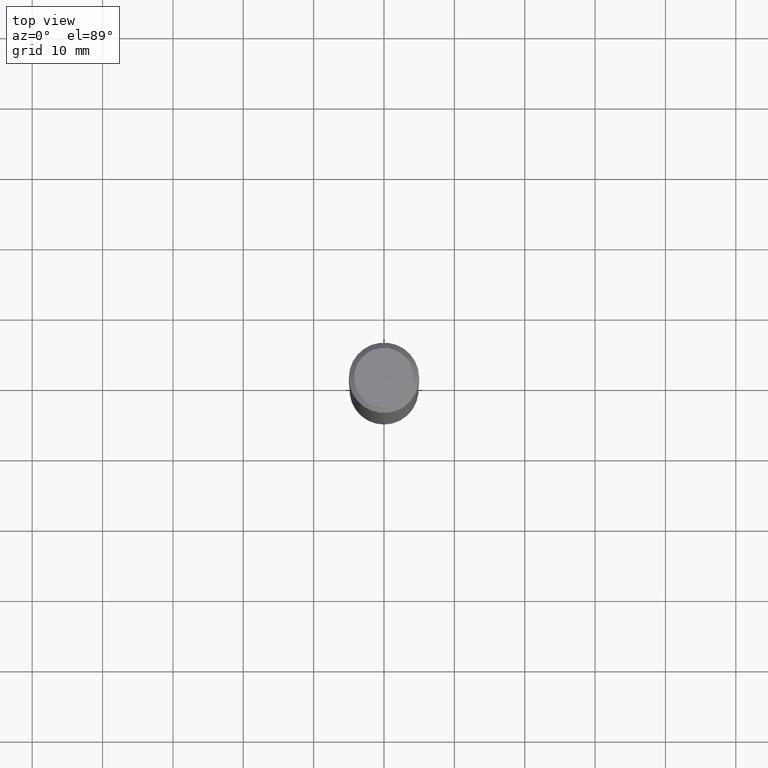
[diagram: clean part render]
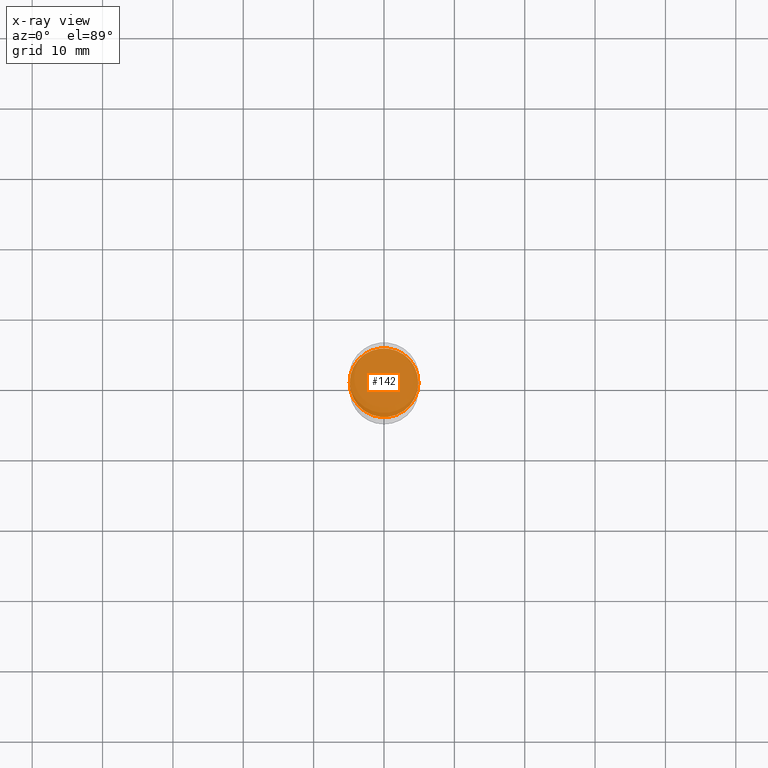
[diagram: x-ray — body ghosted, one internal face saturated and labeled with its STEP entity id]
A machine part, top view, then the same camera in x-ray: the body is ghosted and one INTERNAL B-rep face — a face not visible from any outside direction — is saturated and labeled: STEP entity #142.
In plain terms, the highlighted planar face has unit normal (-0, 0, 1).
Its self-contained STEP definition (entity closure, byte-faithful):
#3 = VERTEX_POINT ( 'NONE', #16 ) ;
#4 = DIRECTION ( 'NONE',  ( -2.445468806185136597E-29, 3.491481338843145583E-15, 1.000000000000000000 ) ) ;
#16 = CARTESIAN_POINT ( 'NONE',  ( 0.1923999999999999877, -7.116337264830093249E-15, -1.653399999999999981 ) ) ;
#36 = EDGE_LOOP ( 'NONE', ( #371, #339 ) ) ;
#40 = CARTESIAN_POINT ( 'NONE',  ( 4.043338124146504977E-29, -5.772815245643255982E-15, -1.653399999999999981 ) ) ;
#80 = AXIS2_PLACEMENT_3D ( 'NONE', #40, #4, #266 ) ;
#84 = CARTESIAN_POINT ( 'NONE',  ( 4.043338124146504977E-29, -5.772815245643255982E-15, -1.653399999999999981 ) ) ;
#134 = DIRECTION ( 'NONE',  ( -2.438088387897960049E-29, 3.491481338843145188E-15, 1.000000000000000000 ) ) ;
#142 = ADVANCED_FACE ( 'NONE', ( #428 ), #389, .F. ) ;
#156 = CIRCLE ( 'NONE', #349, 0.1923999999999999877 ) ;
#193 = EDGE_CURVE ( 'NONE', #482, #3, #441, .T. ) ;
#217 = DIRECTION ( 'NONE',  ( 1.000000000000000000, -6.982962677686265922E-15, 4.876176775795935793E-29 ) ) ;
#236 = AXIS2_PLACEMENT_3D ( 'NONE', #257, #134, #217 ) ;
#257 = CARTESIAN_POINT ( 'NONE',  ( 2.403997817846614662E-29, -8.120443869720435549E-15, -1.653399999999999981 ) ) ;
#265 = EDGE_CURVE ( 'NONE', #3, #482, #156, .T. ) ;
#266 = DIRECTION ( 'NONE',  ( 1.000000000000000000, -6.982962677686266711E-15, 0.000000000000000000 ) ) ;
#268 = DIRECTION ( 'NONE',  ( 1.000000000000000000, -6.982962677686266711E-15, 0.000000000000000000 ) ) ;
#339 = ORIENTED_EDGE ( 'NONE', *, *, #193, .F. ) ;
#349 = AXIS2_PLACEMENT_3D ( 'NONE', #84, #470, #268 ) ;
#371 = ORIENTED_EDGE ( 'NONE', *, *, #265, .F. ) ;
#389 = PLANE ( 'NONE',  #236 ) ;
#428 = FACE_OUTER_BOUND ( 'NONE', #36, .T. ) ;
#441 = CIRCLE ( 'NONE', #80, 0.1923999999999999877 ) ;
#445 = CARTESIAN_POINT ( 'NONE',  ( -0.1923999999999999877, -4.403081794866711914E-15, -1.653399999999999981 ) ) ;
#470 = DIRECTION ( 'NONE',  ( -2.445468806185136597E-29, 3.491481338843145583E-15, 1.000000000000000000 ) ) ;
#482 = VERTEX_POINT ( 'NONE', #445 ) ;